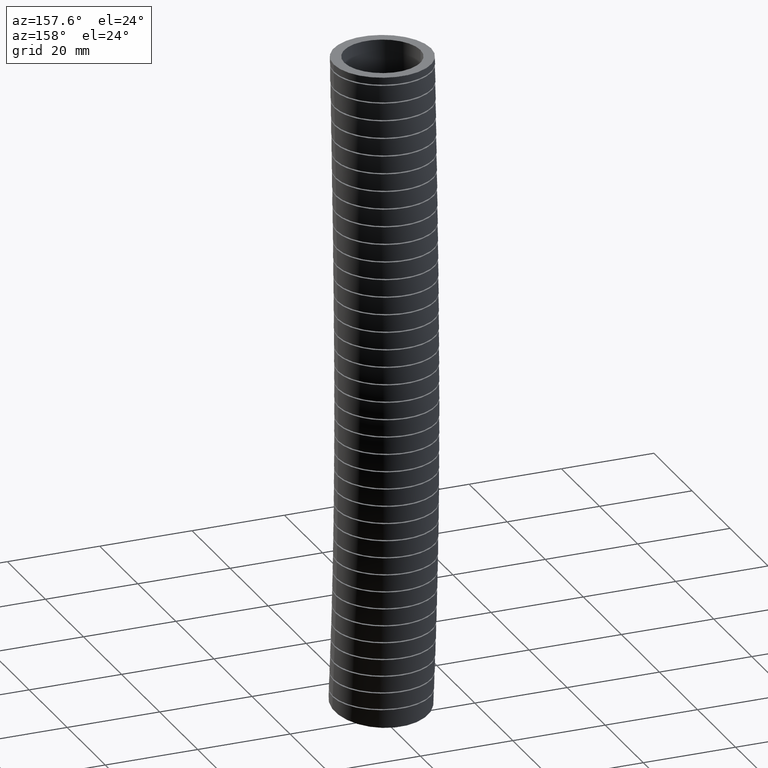
[diagram: clean part render]
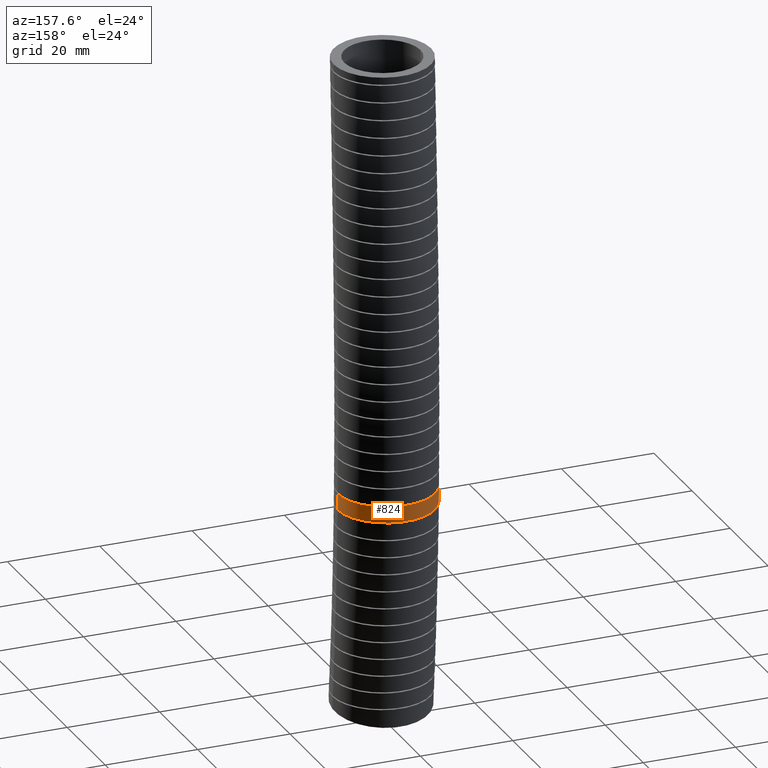
[diagram: same view with one face highlighted and labeled with its STEP entity id]
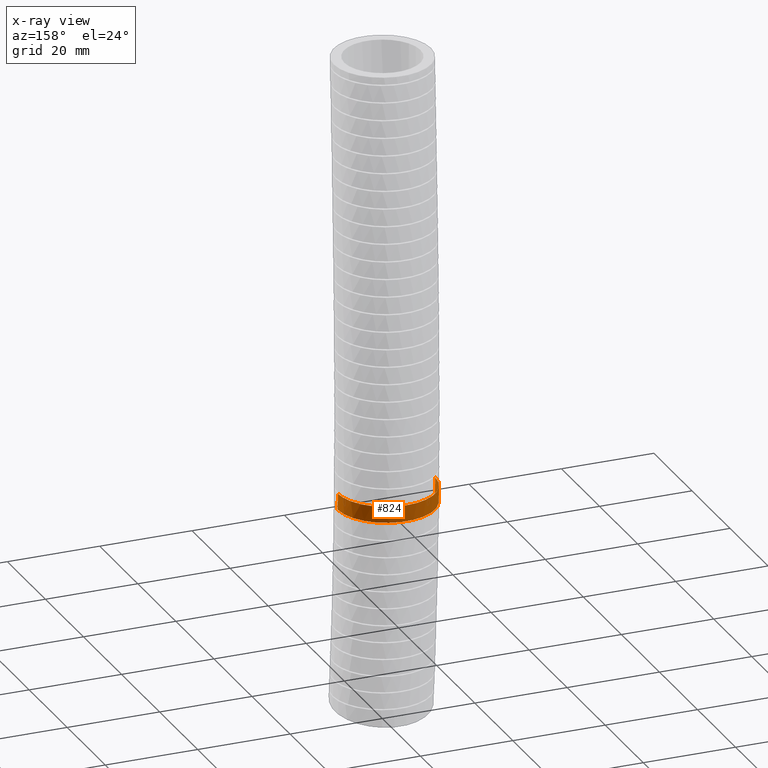
[diagram: x-ray of the same camera — body ghosted, the highlighted face saturated]
A machine part, auxiliary view. The second image highlights one B-rep face of the part: STEP entity #824.
The next image is the same camera in x-ray: the body ghosted, the highlighted face saturated — about 0% of this face is hidden behind the body in this view.
In plain terms, the highlighted face is a freeform B-spline surface patch.
Its self-contained STEP definition (entity closure, byte-faithful):
#10 = VERTEX_POINT ( 'NONE', #7025 ) ;
#11 = EDGE_CURVE ( 'NONE', #19, #10, #7050, .T. ) ;
#19 = VERTEX_POINT ( 'NONE', #7173 ) ;
#23 = VERTEX_POINT ( 'NONE', #7171 ) ;
#75 = EDGE_CURVE ( 'NONE', #23, #83, #7958, .T. ) ;
#83 = VERTEX_POINT ( 'NONE', #7988 ) ;
#807 = ORIENTED_EDGE ( 'NONE', *, *, #810, .T. ) ;
#810 = EDGE_CURVE ( 'NONE', #83, #10, #11496, .T. ) ;
#811 = ORIENTED_EDGE ( 'NONE', *, *, #75, .T. ) ;
#812 = EDGE_CURVE ( 'NONE', #19, #23, #11609, .T. ) ;
#819 = ORIENTED_EDGE ( 'NONE', *, *, #11, .F. ) ;
#822 = EDGE_LOOP ( 'NONE', ( #819, #823, #811, #807 ) ) ;
#823 = ORIENTED_EDGE ( 'NONE', *, *, #812, .T. ) ;
#824 = ADVANCED_FACE ( 'NONE', ( #11625 ), #11651, .T. ) ;
#7025 = CARTESIAN_POINT ( 'NONE',  ( -0.4150000000000000400, 0.08086375489849163800, -3.808348714976673500 ) ) ;
#7050 = B_SPLINE_CURVE_WITH_KNOTS ( 'NONE', 3,
 ( #7115, #7114, #7113, #7112 ),
 .UNSPECIFIED., .F., .F.,
 ( 4, 4 ),
 ( 0.6578187219614928200, 0.6829649936632229400 ),
 .UNSPECIFIED. ) ;
#7112 = CARTESIAN_POINT ( 'NONE',  ( -0.4150000000000000400, 0.08086375489849163800, -3.808348714976673500 ) ) ;
#7113 = CARTESIAN_POINT ( 'NONE',  ( -0.4150000000000000900, 0.08209002653642899500, -3.761701190187802800 ) ) ;
#7114 = CARTESIAN_POINT ( 'NONE',  ( -0.4150000000000000900, 0.08319376071607717500, -3.715048546770515400 ) ) ;
#7115 = CARTESIAN_POINT ( 'NONE',  ( -0.4150000000000000900, 0.08417946917706338500, -3.668390973188624400 ) ) ;
#7171 = CARTESIAN_POINT ( 'NONE',  ( 0.4149999999999999200, 0.08417946918513430400, -3.668390972997609200 ) ) ;
#7173 = CARTESIAN_POINT ( 'NONE',  ( -0.4150000000000000900, 0.08417946917706338500, -3.668390973188624400 ) ) ;
#7950 = CARTESIAN_POINT ( 'NONE',  ( 0.4150000000000000900, 0.08086375490854268200, -3.808348714785499300 ) ) ;
#7951 = CARTESIAN_POINT ( 'NONE',  ( 0.4149999999999999200, 0.08209002654112078400, -3.761701189996565100 ) ) ;
#7952 = CARTESIAN_POINT ( 'NONE',  ( 0.4149999999999999200, 0.08319376072043838100, -3.715048546579347000 ) ) ;
#7953 = CARTESIAN_POINT ( 'NONE',  ( 0.4149999999999999200, 0.08417946918513430400, -3.668390972997609200 ) ) ;
#7958 = B_SPLINE_CURVE_WITH_KNOTS ( 'NONE', 3,
 ( #7953, #7952, #7951, #7950 ),
 .UNSPECIFIED., .F., .F.,
 ( 4, 4 ),
 ( 0.6578187219271615100, 0.6829649936288472200 ),
 .UNSPECIFIED. ) ;
#7988 = CARTESIAN_POINT ( 'NONE',  ( 0.4150000000000000900, 0.08086375490854268200, -3.808348714785499300 ) ) ;
#11492 = CARTESIAN_POINT ( 'NONE',  ( 0.4116225112916286300, 0.1353829762103535600, -3.808348714976670800 ) ) ;
#11493 = CARTESIAN_POINT ( 'NONE',  ( 0.4143217886183922500, 0.1082075927143101900, -3.808348714976671300 ) ) ;
#11494 = CARTESIAN_POINT ( 'NONE',  ( 0.4150000000000000900, 0.09456393801290144400, -3.808348714785498900 ) ) ;
#11495 = CARTESIAN_POINT ( 'NONE',  ( 0.4150000000000000900, 0.08086375490854268200, -3.808348714785499300 ) ) ;
#11496 = B_SPLINE_CURVE_WITH_KNOTS ( 'NONE', 3,
 ( #11495, #11494, #11493, #11492, #11563, #11562, #11561, #11560, #11559, #11558, #11557, #11556, #11555, #11554, #11553, #11552, #11551, #11550, #11549, #11548, #11547, #11546, #11545, #11544, #11543, #11542, #11541, #11540, #11539, #11538, #11537, #11536, #11535, #11534, #11533, #11532, #11531, #11530, #11529, #11528, #11527, #11526, #11525, #11524, #11523, #11522, #11521, #11520, #11519 ),
 .UNSPECIFIED., .F., .F.,
 ( 4, 2, 2, 2, 2, 2, 2, 2, 2, 2, 2, 2, 2, 2, 2, 2, 2, 2, 1, 2, 2, 2, 2, 2, 4 ),
 ( 0.0000000000000000000, 0.001040346513596344600, 0.002080693027192689300, 0.004161386054385376000, 0.005201732567981721300, 0.006242079081578066600, 0.008322772108770755400, 0.009363118622367102400, 0.01040346513596344800, 0.01248415816315614000, 0.01456485119034883100, 0.01560519770394517600, 0.01664554421754152100, 0.01872623724473421200, 0.01976658375833055500, 0.02080693027192689900, 0.02288762329911959000, 0.02392796981271593300, 0.02496831632631228000, 0.02600866283990862700, 0.02704900935350497100, 0.02912970238069765400, 0.03017004889429399400, 0.03121039540789033800, 0.03329108843508302200 ),
 .UNSPECIFIED. ) ;
#11519 = CARTESIAN_POINT ( 'NONE',  ( -0.4150000000000000400, 0.08086375489849163800, -3.808348714976673500 ) ) ;
#11520 = CARTESIAN_POINT ( 'NONE',  ( -0.4150000000000001500, 0.1080321465793514400, -3.808348714976671700 ) ) ;
#11521 = CARTESIAN_POINT ( 'NONE',  ( -0.4123518791589581600, 0.1349142256885742500, -3.808348714976672600 ) ) ;
#11522 = CARTESIAN_POINT ( 'NONE',  ( -0.4044307759899442600, 0.1748103902765248400, -3.808348714976673000 ) ) ;
#11523 = CARTESIAN_POINT ( 'NONE',  ( -0.4011089711627266500, 0.1880963823661321900, -3.808348714976671300 ) ) ;
#11524 = CARTESIAN_POINT ( 'NONE',  ( -0.3931730286870201400, 0.2142382143721316100, -3.808348714976671300 ) ) ;
#11525 = CARTESIAN_POINT ( 'NONE',  ( -0.3885898648811863000, 0.2270154706749898400, -3.808348714976673500 ) ) ;
#11526 = CARTESIAN_POINT ( 'NONE',  ( -0.3730498273248440400, 0.2644925295795987900, -3.808348714976674800 ) ) ;
#11527 = CARTESIAN_POINT ( 'NONE',  ( -0.3603194601669396100, 0.2883457622302095800, -3.808348714976673900 ) ) ;
#11528 = CARTESIAN_POINT ( 'NONE',  ( -0.3375729875909898600, 0.3223828583376613400, -3.808348714976673500 ) ) ;
#11529 = CARTESIAN_POINT ( 'NONE',  ( -0.3293937704142982900, 0.3333969403608289500, -3.808348714976676200 ) ) ;
#11530 = CARTESIAN_POINT ( 'NONE',  ( -0.3121683199323987400, 0.3543612161160934500, -3.808348714976677000 ) ) ;
#11531 = CARTESIAN_POINT ( 'NONE',  ( -0.2939970969252480000, 0.3743841043705051200, -3.808348714976667700 ) ) ;
#11532 = CARTESIAN_POINT ( 'NONE',  ( -0.2739604997219883800, 0.3925502671378175400, -3.808348714976671300 ) ) ;
#11533 = CARTESIAN_POINT ( 'NONE',  ( -0.2529772835914870800, 0.4097741999265851500, -3.808348714976672600 ) ) ;
#11534 = CARTESIAN_POINT ( 'NONE',  ( -0.2419475208495497900, 0.4179559939995438600, -3.808348714976673500 ) ) ;
#11535 = CARTESIAN_POINT ( 'NONE',  ( -0.2079259341386672000, 0.4406713041627003900, -3.808348714976673000 ) ) ;
#11536 = CARTESIAN_POINT ( 'NONE',  ( -0.1840754818849200100, 0.4533946325337877600, -3.808348714976670400 ) ) ;
#11537 = CARTESIAN_POINT ( 'NONE',  ( -0.1465881965590190300, 0.4689372350682243800, -3.808348714976670400 ) ) ;
#11538 = CARTESIAN_POINT ( 'NONE',  ( -0.1338051252122002500, 0.4735234785848460000, -3.808348714976673500 ) ) ;
#11539 = CARTESIAN_POINT ( 'NONE',  ( -0.1076461472316574300, 0.4814690169831056800, -3.808348714976673500 ) ) ;
#11540 = CARTESIAN_POINT ( 'NONE',  ( -0.09438058934162735200, 0.4847892298650874300, -3.808348714976673000 ) ) ;
#11541 = CARTESIAN_POINT ( 'NONE',  ( -0.05450393127135502000, 0.4927258024776271500, -3.808348714976673000 ) ) ;
#11542 = CARTESIAN_POINT ( 'NONE',  ( -0.02762298155303943500, 0.4953964325394693000, -3.808348714976670400 ) ) ;
#11543 = CARTESIAN_POINT ( 'NONE',  ( 0.01314681124977794100, 0.4954399198999718800, -3.808348714976670800 ) ) ;
#11544 = CARTESIAN_POINT ( 'NONE',  ( 0.02688320940541561200, 0.4947784441020977000, -3.808348714976670800 ) ) ;
#11545 = CARTESIAN_POINT ( 'NONE',  ( 0.05398466110327786200, 0.4921280350057149500, -3.808348714976670400 ) ) ;
#11546 = CARTESIAN_POINT ( 'NONE',  ( 0.06738551212463161900, 0.4901465858258733900, -3.808348714976673000 ) ) ;
#11547 = CARTESIAN_POINT ( 'NONE',  ( 0.1071486266737360500, 0.4822781048541958100, -3.808348714976673000 ) ) ;
#11548 = CARTESIAN_POINT ( 'NONE',  ( 0.1330757634257918300, 0.4744858190897447400, -3.808348714976673000 ) ) ;
#11549 = CARTESIAN_POINT ( 'NONE',  ( 0.1837182111707769400, 0.4535951253669045500, -3.808348714976673500 ) ) ;
#11550 = CARTESIAN_POINT ( 'NONE',  ( 0.2076193429681536800, 0.4408290061679062100, -3.808348714976670400 ) ) ;
#11551 = CARTESIAN_POINT ( 'NONE',  ( 0.2413595998102369100, 0.4183712673134473100, -3.808348714976671700 ) ) ;
#11552 = CARTESIAN_POINT ( 'NONE',  ( 0.2522558046607236700, 0.4103281880986371400, -3.808348714976673500 ) ) ;
#11553 = CARTESIAN_POINT ( 'NONE',  ( 0.2733313186835504300, 0.3931025830441998700, -3.808348714976673500 ) ) ;
#11554 = CARTESIAN_POINT ( 'NONE',  ( 0.2835389239993607600, 0.3838825401601279600, -3.808348714976670800 ) ) ;
#11555 = CARTESIAN_POINT ( 'NONE',  ( 0.3124216894841126400, 0.3550855170813258500, -3.808348714976671700 ) ) ;
#11556 = CARTESIAN_POINT ( 'NONE',  ( 0.3295911472989145900, 0.3342276785705749500, -3.808348714976671700 ) ) ;
#11557 = CARTESIAN_POINT ( 'NONE',  ( 0.3522457437734385900, 0.3004742552857418400, -3.808348714976672600 ) ) ;
#11558 = CARTESIAN_POINT ( 'NONE',  ( 0.3592972178211533100, 0.2887709740484310000, -3.808348714976671700 ) ) ;
#11559 = CARTESIAN_POINT ( 'NONE',  ( 0.3722294085291263900, 0.2646714266978300000, -3.808348714976673000 ) ) ;
#11560 = CARTESIAN_POINT ( 'NONE',  ( 0.3780498972500275800, 0.2523969147921543700, -3.808348714976670400 ) ) ;
#11561 = CARTESIAN_POINT ( 'NONE',  ( 0.3936353181581638800, 0.2149203202789375100, -3.808348714976670400 ) ) ;
#11562 = CARTESIAN_POINT ( 'NONE',  ( 0.4015419693432928400, 0.1890713626819677800, -3.808348714976669000 ) ) ;
#11563 = CARTESIAN_POINT ( 'NONE',  ( 0.4095885007772530100, 0.1489704508327863200, -3.808348714976670400 ) ) ;
#11564 = CARTESIAN_POINT ( 'NONE',  ( 0.4149999999999999200, 0.08417946918513430400, -3.668390972997609200 ) ) ;
#11565 = CARTESIAN_POINT ( 'NONE',  ( 0.4149999999999999200, 0.1115786388542832500, -3.668390972997608300 ) ) ;
#11566 = CARTESIAN_POINT ( 'NONE',  ( 0.4123069130054378700, 0.1386931337677861100, -3.668390973188626600 ) ) ;
#11567 = CARTESIAN_POINT ( 'NONE',  ( 0.4015560040450640900, 0.1923551788982148000, -3.668390973188624400 ) ) ;
#11568 = CARTESIAN_POINT ( 'NONE',  ( 0.3935912882229241600, 0.2183498941180736000, -3.668390973188623500 ) ) ;
#11569 = CARTESIAN_POINT ( 'NONE',  ( 0.3780246480418957800, 0.2557588272540969300, -3.668390973188623900 ) ) ;
#11570 = CARTESIAN_POINT ( 'NONE',  ( 0.3722237230054542000, 0.2679843914773134500, -3.668390973188622600 ) ) ;
#11571 = CARTESIAN_POINT ( 'NONE',  ( 0.3593748486586509400, 0.2919382135320198700, -3.668390973188622600 ) ) ;
#11572 = CARTESIAN_POINT ( 'NONE',  ( 0.3522841466252419300, 0.3037227895874504100, -3.668390973188627100 ) ) ;
#11573 = CARTESIAN_POINT ( 'NONE',  ( 0.3295255333520762900, 0.3376309457182419800, -3.668390973188627100 ) ) ;
#11574 = CARTESIAN_POINT ( 'NONE',  ( 0.3123350889768458100, 0.3584764169533654600, -3.668390973188625700 ) ) ;
#11575 = CARTESIAN_POINT ( 'NONE',  ( 0.2739870979580186200, 0.3967075760080940900, -3.668390973188626200 ) ) ;
#11576 = CARTESIAN_POINT ( 'NONE',  ( 0.2526048265844803000, 0.4141927684582244500, -3.668390973188627500 ) ) ;
#11577 = CARTESIAN_POINT ( 'NONE',  ( 0.2075178496101244000, 0.4441920394285640000, -3.668390973188627100 ) ) ;
#11578 = CARTESIAN_POINT ( 'NONE',  ( 0.1836762793687151700, 0.4569030291387111700, -3.668390973188623900 ) ) ;
#11579 = CARTESIAN_POINT ( 'NONE',  ( 0.1459370682644747500, 0.4724841226433950100, -3.668390973188623900 ) ) ;
#11580 = CARTESIAN_POINT ( 'NONE',  ( 0.1329803868482712100, 0.4770993529514057100, -3.668390973188627100 ) ) ;
#11581 = CARTESIAN_POINT ( 'NONE',  ( 0.1069513192617242800, 0.4849508080783683200, -3.668390973188627100 ) ) ;
#11582 = CARTESIAN_POINT ( 'NONE',  ( 0.09381782282402136000, 0.4882170509004403200, -3.668390973188628400 ) ) ;
#11583 = CARTESIAN_POINT ( 'NONE',  ( 0.05406731400585151200, 0.4960754011589822400, -3.668390973188628400 ) ) ;
#11584 = CARTESIAN_POINT ( 'NONE',  ( 0.02701272099548885200, 0.4987458987122988000, -3.668390973188627100 ) ) ;
#11585 = CARTESIAN_POINT ( 'NONE',  ( -0.02768821567400334100, 0.4987014281361532600, -3.668390973188627500 ) ) ;
#11586 = CARTESIAN_POINT ( 'NONE',  ( -0.05461047862027704200, 0.4960049432161799900, -3.668390973188627100 ) ) ;
#11587 = CARTESIAN_POINT ( 'NONE',  ( -0.09437386068924330500, 0.4880880838066085600, -3.668390973188628400 ) ) ;
#11588 = CARTESIAN_POINT ( 'NONE',  ( -0.1075242299329164100, 0.4847990535841890100, -3.668390973188623500 ) ) ;
#11589 = CARTESIAN_POINT ( 'NONE',  ( -0.1336113624406687600, 0.4768869704304367100, -3.668390973188623500 ) ) ;
#11590 = CARTESIAN_POINT ( 'NONE',  ( -0.1465451681709709100, 0.4722543875978830700, -3.668390973188627500 ) ) ;
#11591 = CARTESIAN_POINT ( 'NONE',  ( -0.1841702709868301700, 0.4566549384582586600, -3.668390973188628400 ) ) ;
#11592 = CARTESIAN_POINT ( 'NONE',  ( -0.2079919226998549500, 0.4439226639256871300, -3.668390973188627500 ) ) ;
#11593 = CARTESIAN_POINT ( 'NONE',  ( -0.2418364259123727000, 0.4213338877297337400, -3.668390973188626600 ) ) ;
#11594 = CARTESIAN_POINT ( 'NONE',  ( -0.2528541433540720300, 0.4131734458732571600, -3.668390973188624800 ) ) ;
#11595 = CARTESIAN_POINT ( 'NONE',  ( -0.2739593980751431900, 0.3958568896347608400, -3.668390973188625700 ) ) ;
#11596 = CARTESIAN_POINT ( 'NONE',  ( -0.2840095892475512100, 0.3867417305982598400, -3.668390973188623900 ) ) ;
#11597 = CARTESIAN_POINT ( 'NONE',  ( -0.3126948578014774900, 0.3580638059232604800, -3.668390973188624400 ) ) ;
#11598 = CARTESIAN_POINT ( 'NONE',  ( -0.3298786890479792300, 0.3371813768508900000, -3.668390973188621700 ) ) ;
#11599 = CARTESIAN_POINT ( 'NONE',  ( -0.3526551271828952700, 0.3031303681395040600, -3.668390973188622600 ) ) ;
#11600 = CARTESIAN_POINT ( 'NONE',  ( -0.3596979754164362800, 0.2913774825684339900, -3.668390973188626600 ) ) ;
#11601 = CARTESIAN_POINT ( 'NONE',  ( -0.3724820234105409900, 0.2674592465814970600, -3.668390973188624400 ) ) ;
#11602 = CARTESIAN_POINT ( 'NONE',  ( -0.3840384004214547100, 0.2430207510362655000, -3.668390973188626200 ) ) ;
#11603 = CARTESIAN_POINT ( 'NONE',  ( -0.3931683042557427800, 0.2175539703231250100, -3.668390973188623500 ) ) ;
#11604 = CARTESIAN_POINT ( 'NONE',  ( -0.4010642406960898100, 0.1915642617733639700, -3.668390973188624800 ) ) ;
#11605 = CARTESIAN_POINT ( 'NONE',  ( -0.4044073523100320500, 0.1782321666622867000, -3.668390973188625700 ) ) ;
#11606 = CARTESIAN_POINT ( 'NONE',  ( -0.4123719919435763200, 0.1381416686306048400, -3.668390973188625700 ) ) ;
#11607 = CARTESIAN_POINT ( 'NONE',  ( -0.4150000000000001500, 0.1112441300150651400, -3.668390973188624800 ) ) ;
#11608 = CARTESIAN_POINT ( 'NONE',  ( -0.4150000000000000900, 0.08417946917706338500, -3.668390973188624400 ) ) ;
#11609 = B_SPLINE_CURVE_WITH_KNOTS ( 'NONE', 3,
 ( #11608, #11607, #11606, #11605, #11604, #11603, #11602, #11601, #11600, #11599, #11598, #11597, #11596, #11595, #11594, #11593, #11592, #11591, #11590, #11589, #11588, #11587, #11586, #11585, #11584, #11583, #11582, #11581, #11580, #11579, #11578, #11577, #11576, #11575, #11574, #11573, #11572, #11571, #11570, #11569, #11568, #11567, #11566, #11565, #11564 ),
 .UNSPECIFIED., .F., .F.,
 ( 4, 2, 2, 1, 2, 2, 2, 2, 2, 2, 2, 2, 2, 2, 2, 2, 2, 2, 2, 2, 2, 2, 4 ),
 ( 0.03293745427354450400, 0.03499562515748406300, 0.03602471059945384200, 0.03705379604142361400, 0.03808288148339339400, 0.03911196692536317300, 0.04117013780930273800, 0.04219922325127251800, 0.04322830869324229700, 0.04528647957718186200, 0.04631556501915164200, 0.04734465046112142800, 0.04940282134506099300, 0.05146099222900055900, 0.05249007767097034500, 0.05351916311294012400, 0.05557733399687969600, 0.05763550488081926200, 0.05969367576475882700, 0.06072276120672861300, 0.06175184664869840000, 0.06381001753263797200, 0.06586818841657754400 ),
 .UNSPECIFIED. ) ;
#11625 = FACE_OUTER_BOUND ( 'NONE', #822, .T. ) ;
#11651 =( BOUNDED_SURFACE ( )  B_SPLINE_SURFACE ( 3, 3, ( 
 ( #11700, #11699, #11698, #11697, #11696, #11695 ),
 ( #11694, #11693, #11692, #11691, #11690, #11689 ),
 ( #11688, #11687, #11686, #11685, #11684, #11683 ),
 ( #11682, #11681, #11680, #11679, #11678, #11677 ),
 ( #11676, #11675, #11674, #11673, #11672, #11671 ),
 ( #11670, #11669, #11668, #11667, #11666, #11665 ),
 ( #11664, #11663, #11662, #11661, #11660, #11659 ) ),
 .UNSPECIFIED., .F., .F., .F. ) 
 B_SPLINE_SURFACE_WITH_KNOTS ( ( 4, 3, 4 ),
 ( 4, 1, 1, 4 ),
 ( 0.0000000000000000000, 0.5000000000000000000, 1.000000000000000000 ),
 ( 0.0000000000000000000, 0.5600000000000000500, 0.8973141982067990300, 1.000000000000000000 ),
 .UNSPECIFIED. ) 
 GEOMETRIC_REPRESENTATION_ITEM ( )  RATIONAL_B_SPLINE_SURFACE ( (
 ( 1.000000000000000000, 1.000000000000000000, 1.000000000000000000, 1.000000000000000000, 1.000000000000000000, 1.000000000000000000),
 ( 0.3333333333333333100, 0.3333333333333333100, 0.3333333333333333100, 0.3333333333333333100, 0.3333333333333332600, 0.3333333333333333100),
 ( 0.3333333333333333100, 0.3333333333333333100, 0.3333333333333333100, 0.3333333333333333100, 0.3333333333333332600, 0.3333333333333333100),
 ( 1.000000000000000000, 1.000000000000000000, 1.000000000000000000, 1.000000000000000000, 1.000000000000000000, 1.000000000000000000),
 ( 0.3333333333333333100, 0.3333333333333333100, 0.3333333333333333100, 0.3333333333333333100, 0.3333333333333332600, 0.3333333333333333100),
 ( 0.3333333333333333100, 0.3333333333333333100, 0.3333333333333333100, 0.3333333333333333100, 0.3333333333333332600, 0.3333333333333333100),
 ( 1.000000000000000000, 1.000000000000000000, 1.000000000000000000, 1.000000000000000000, 1.000000000000000000, 1.000000000000000000) ) ) 
 REPRESENTATION_ITEM ( '' )  SURFACE ( )  );
#11659 = CARTESIAN_POINT ( 'NONE',  ( 0.4150000000000000400, -0.03000000000000001600, -5.569999999999998500 ) ) ;
#11660 = CARTESIAN_POINT ( 'NONE',  ( 0.4150000000000000900, -0.01243844818931303500, -5.380037381098891700 ) ) ;
#11661 = CARTESIAN_POINT ( 'NONE',  ( 0.4150000000000000900, 0.06281132015026588700, -4.566063580857106200 ) ) ;
#11662 = CARTESIAN_POINT ( 'NONE',  ( 0.4149999999999999200, 0.1218071073635319700, -2.711443563840852700 ) ) ;
#11663 = CARTESIAN_POINT ( 'NONE',  ( 0.4150000000000000900, 0.04680663936954134600, -1.041922460934817000 ) ) ;
#11664 = CARTESIAN_POINT ( 'NONE',  ( 0.4150000000000000900, 0.0000000000000000000, 0.0000000000000000000 ) ) ;
#11665 = CARTESIAN_POINT ( 'NONE',  ( 0.4150000000000000400, 0.7922141346493595200, -5.683419208173947200 ) ) ;
#11666 = CARTESIAN_POINT ( 'NONE',  ( 0.4150000000000002000, 0.8104118928973711400, -5.486989566509566700 ) ) ;
#11667 = CARTESIAN_POINT ( 'NONE',  ( 0.4150000000000000400, 0.8883877521622221000, -4.645305119166129900 ) ) ;
#11668 = CARTESIAN_POINT ( 'NONE',  ( 0.4150000000000000400, 0.9528682252578860600, -2.732677208711230800 ) ) ;
#11669 = CARTESIAN_POINT ( 'NONE',  ( 0.4150000000000000900, 0.8772143935941071300, -1.050081882658727000 ) ) ;
#11670 = CARTESIAN_POINT ( 'NONE',  ( 0.4150000000000000900, 0.8300000000000001800, 0.0000000000000000000 ) ) ;
#11671 = CARTESIAN_POINT ( 'NONE',  ( -0.4149999999999999200, 0.7922141346493595200, -5.683419208173947200 ) ) ;
#11672 = CARTESIAN_POINT ( 'NONE',  ( -0.4150000000000000400, 0.8104118928973711400, -5.486989566509566700 ) ) ;
#11673 = CARTESIAN_POINT ( 'NONE',  ( -0.4149999999999999200, 0.8883877521622221000, -4.645305119166129900 ) ) ;
#11674 = CARTESIAN_POINT ( 'NONE',  ( -0.4149999999999999200, 0.9528682252578860600, -2.732677208711230800 ) ) ;
#11675 = CARTESIAN_POINT ( 'NONE',  ( -0.4149999999999999200, 0.8772143935941071300, -1.050081882658727000 ) ) ;
#11676 = CARTESIAN_POINT ( 'NONE',  ( -0.4150000000000000400, 0.8300000000000001800, 0.0000000000000000000 ) ) ;
#11677 = CARTESIAN_POINT ( 'NONE',  ( -0.4150000000000000400, -0.02999999999999996800, -5.569999999999998500 ) ) ;
#11678 = CARTESIAN_POINT ( 'NONE',  ( -0.4150000000000000900, -0.01243844818931298000, -5.380037381098891700 ) ) ;
#11679 = CARTESIAN_POINT ( 'NONE',  ( -0.4150000000000000900, 0.06281132015026594200, -4.566063580857106200 ) ) ;
#11680 = CARTESIAN_POINT ( 'NONE',  ( -0.4149999999999999200, 0.1218071073635320100, -2.711443563840852700 ) ) ;
#11681 = CARTESIAN_POINT ( 'NONE',  ( -0.4150000000000000900, 0.04680663936954139500, -1.041922460934817000 ) ) ;
#11682 = CARTESIAN_POINT ( 'NONE',  ( -0.4150000000000000900, 5.082284216461516900E-017, 0.0000000000000000000 ) ) ;
#11683 = CARTESIAN_POINT ( 'NONE',  ( -0.4150000000000000900, -0.8522141346493592500, -5.456580791826050700 ) ) ;
#11684 = CARTESIAN_POINT ( 'NONE',  ( -0.4150000000000002000, -0.8352887892759974800, -5.273085195688222100 ) ) ;
#11685 = CARTESIAN_POINT ( 'NONE',  ( -0.4150000000000000900, -0.7627651118616902700, -4.486822042548080700 ) ) ;
#11686 = CARTESIAN_POINT ( 'NONE',  ( -0.4150000000000000400, -0.7092540105308221500, -2.690209918970475100 ) ) ;
#11687 = CARTESIAN_POINT ( 'NONE',  ( -0.4150000000000000900, -0.7836011148550242600, -1.033763039210906500 ) ) ;
#11688 = CARTESIAN_POINT ( 'NONE',  ( -0.4150000000000000900, -0.8300000000000001800, 0.0000000000000000000 ) ) ;
#11689 = CARTESIAN_POINT ( 'NONE',  ( 0.4150000000000000400, -0.8522141346493592500, -5.456580791826050700 ) ) ;
#11690 = CARTESIAN_POINT ( 'NONE',  ( 0.4150000000000002000, -0.8352887892759974800, -5.273085195688222100 ) ) ;
#11691 = CARTESIAN_POINT ( 'NONE',  ( 0.4150000000000000400, -0.7627651118616902700, -4.486822042548080700 ) ) ;
#11692 = CARTESIAN_POINT ( 'NONE',  ( 0.4150000000000000400, -0.7092540105308221500, -2.690209918970475100 ) ) ;
#11693 = CARTESIAN_POINT ( 'NONE',  ( 0.4150000000000000900, -0.7836011148550242600, -1.033763039210906500 ) ) ;
#11694 = CARTESIAN_POINT ( 'NONE',  ( 0.4150000000000000900, -0.8300000000000001800, 0.0000000000000000000 ) ) ;
#11695 = CARTESIAN_POINT ( 'NONE',  ( 0.4150000000000000400, -0.03000000000000001600, -5.569999999999998500 ) ) ;
#11696 = CARTESIAN_POINT ( 'NONE',  ( 0.4150000000000000900, -0.01243844818931303500, -5.380037381098891700 ) ) ;
#11697 = CARTESIAN_POINT ( 'NONE',  ( 0.4150000000000000900, 0.06281132015026588700, -4.566063580857106200 ) ) ;
#11698 = CARTESIAN_POINT ( 'NONE',  ( 0.4149999999999999200, 0.1218071073635319700, -2.711443563840852700 ) ) ;
#11699 = CARTESIAN_POINT ( 'NONE',  ( 0.4150000000000000900, 0.04680663936954134600, -1.041922460934817000 ) ) ;
#11700 = CARTESIAN_POINT ( 'NONE',  ( 0.4150000000000000900, 0.0000000000000000000, 0.0000000000000000000 ) ) ;